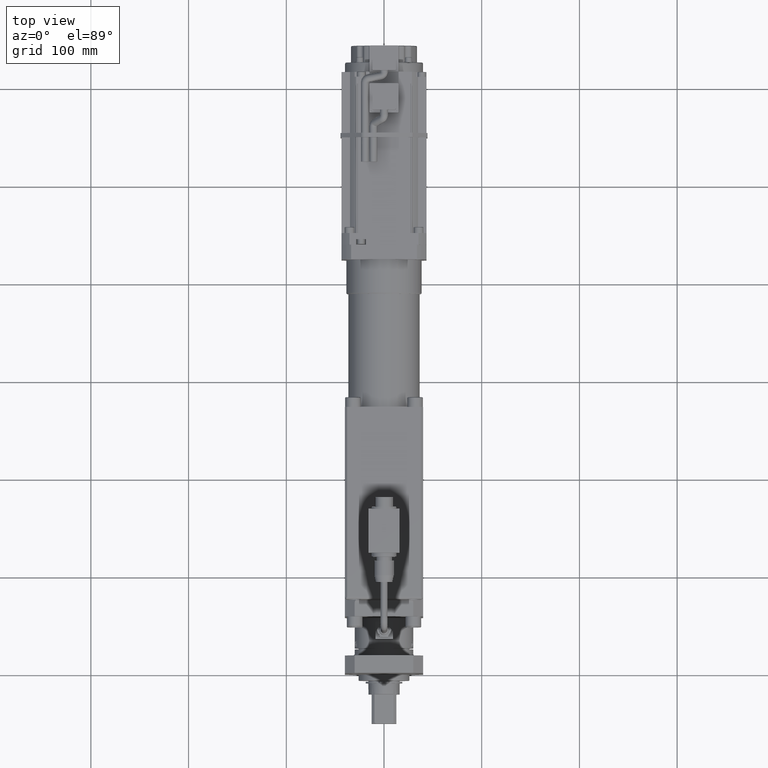
[diagram: clean part render]
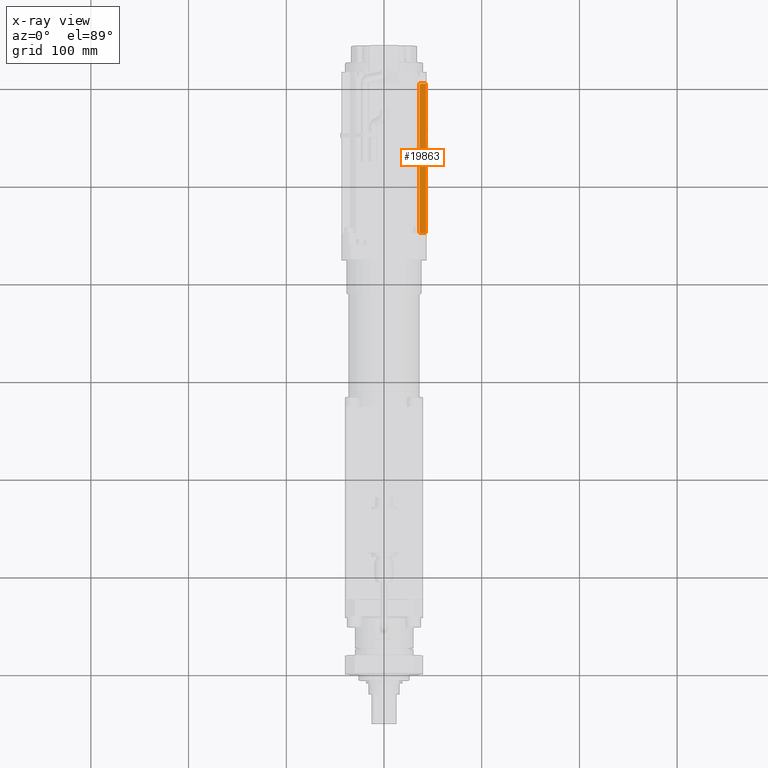
[diagram: x-ray — body ghosted, one internal face saturated and labeled with its STEP entity id]
A machine part, top view, then the same camera in x-ray: the body is ghosted and one INTERNAL B-rep face — a face not visible from any outside direction — is saturated and labeled: STEP entity #19863.
In plain terms, the highlighted planar face has unit normal (-0, 0, 1).
Its self-contained STEP definition (entity closure, byte-faithful):
#516=PLANE('',#21733);
#2137=FACE_OUTER_BOUND('',#3323,.T.);
#3323=EDGE_LOOP('',(#17012,#17013,#17014,#17015));
#5507=LINE('',#34136,#7265);
#5511=LINE('',#34146,#7269);
#5513=LINE('',#34154,#7271);
#5565=LINE('',#34304,#7323);
#7265=VECTOR('',#26237,10.);
#7269=VECTOR('',#26245,10.);
#7271=VECTOR('',#26253,10.);
#7323=VECTOR('',#26379,10.);
#9386=VERTEX_POINT('',#34133);
#9387=VERTEX_POINT('',#34135);
#9391=VERTEX_POINT('',#34145);
#9394=VERTEX_POINT('',#34152);
#12006=EDGE_CURVE('',#9387,#9386,#5507,.T.);
#12011=EDGE_CURVE('',#9391,#9387,#5511,.T.);
#12015=EDGE_CURVE('',#9394,#9386,#5513,.T.);
#12088=EDGE_CURVE('',#9391,#9394,#5565,.T.);
#17012=ORIENTED_EDGE('',*,*,#12088,.F.);
#17013=ORIENTED_EDGE('',*,*,#12011,.T.);
#17014=ORIENTED_EDGE('',*,*,#12006,.T.);
#17015=ORIENTED_EDGE('',*,*,#12015,.F.);
#19863=ADVANCED_FACE('',(#2137),#516,.F.);
#21733=AXIS2_PLACEMENT_3D('',#34303,#26377,#26378);
#26237=DIRECTION('',(-3.97615775803821E-16,1.,-3.48532376273854E-16));
#26245=DIRECTION('',(-1.,-3.97615775803822E-16,-3.83026943495679E-15));
#26253=DIRECTION('',(-1.,-3.97615775803822E-16,-3.83026943495679E-15));
#26377=DIRECTION('center_axis',(-3.83026943495679E-15,3.48532376273852E-16,
1.));
#26378=DIRECTION('ref_axis',(-3.97615775803821E-16,1.,-3.48532376273854E-16));
#26379=DIRECTION('',(-3.97615775803821E-16,1.,-3.48532376273854E-16));
#34133=CARTESIAN_POINT('',(36.4999999999999,603.,125.35));
#34135=CARTESIAN_POINT('',(36.4999999999999,450.,125.35));
#34136=CARTESIAN_POINT('',(36.4999999999999,603.,125.35));
#34145=CARTESIAN_POINT('',(42.8999999999999,450.,125.35));
#34146=CARTESIAN_POINT('',(43.4999999999999,450.,125.35));
#34152=CARTESIAN_POINT('',(42.8999999999999,603.,125.35));
#34154=CARTESIAN_POINT('',(43.4999999999999,603.,125.35));
#34303=CARTESIAN_POINT('Origin',(43.4999999999999,450.,125.35));
#34304=CARTESIAN_POINT('',(42.8999999999999,444.,125.35));